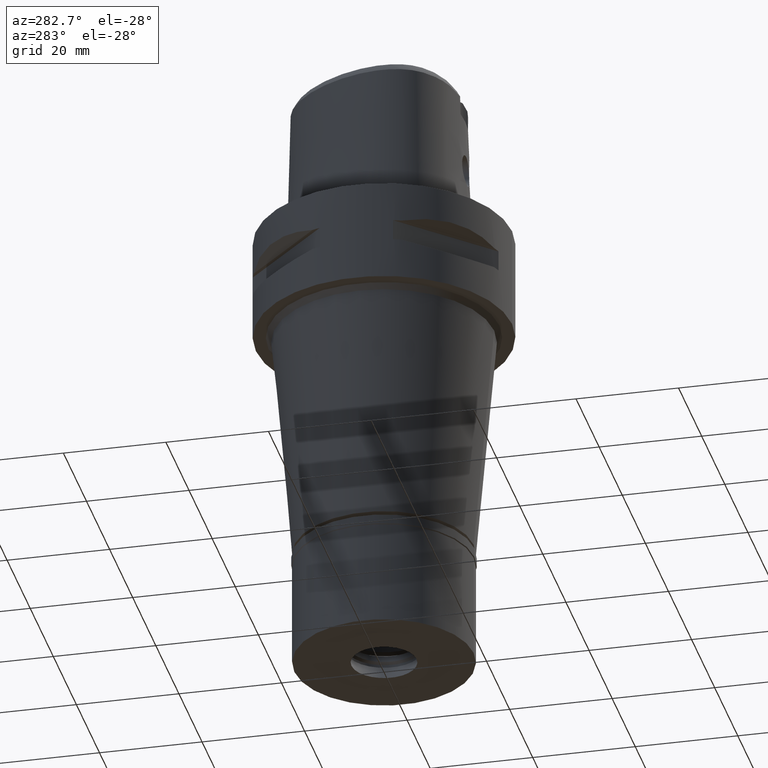
[diagram: clean part render]
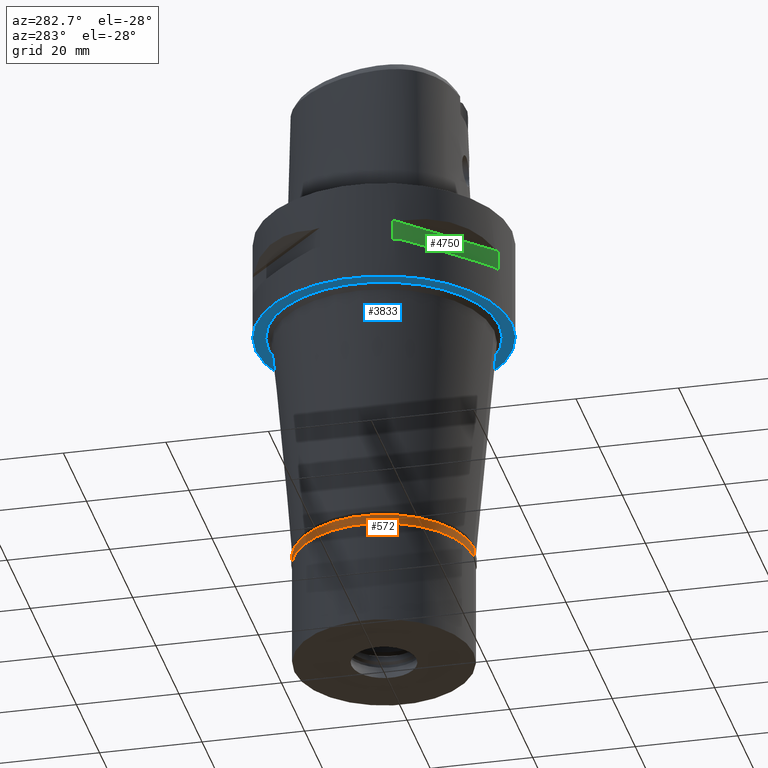
[diagram: same view with three faces highlighted in distinct colors, each labeled with its STEP entity id]
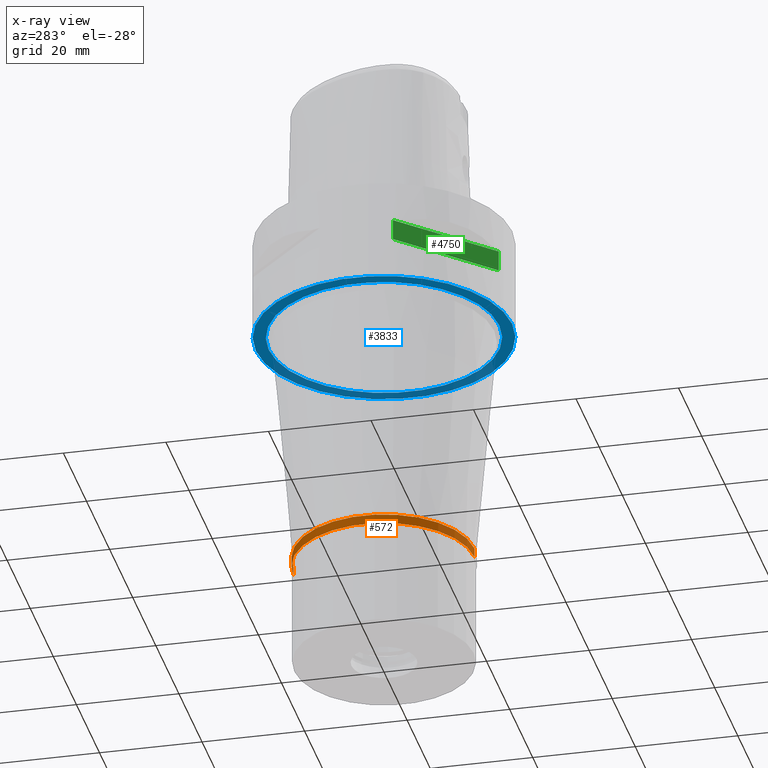
[diagram: x-ray of the same camera — body ghosted, the three highlighted faces saturated]
A machine part, auxiliary view with three faces highlighted in distinct colors.
The next image is the same camera in x-ray (body ghosted, the three faces saturated) — at least one of them is partly hidden behind the body in this view.
Their STEP definitions:

[orange] entity #572 — the highlighted cylindrical surface (partial cylindrical patch) has radius 17.65 mm, axis along (0, 0, -1).
#355 = CARTESIAN_POINT ( 'NONE',  ( 0.0000000000000000000, -17.64999999999999858, 0.0000000000000000000 ) ) ;
#401 = LINE ( 'NONE', #1891, #3010 ) ;
#503 = VERTEX_POINT ( 'NONE', #3673 ) ;
#572 = ADVANCED_FACE ( 'NONE', ( #4260 ), #1643, .T. ) ;
#825 = EDGE_CURVE ( 'NONE', #1522, #4436, #2646, .T. ) ;
#853 = EDGE_CURVE ( 'NONE', #4436, #503, #1742, .T. ) ;
#1069 = CARTESIAN_POINT ( 'NONE',  ( 0.0000000000000000000, 0.0000000000000000000, 0.0000000000000000000 ) ) ;
#1188 = AXIS2_PLACEMENT_3D ( 'NONE', #3577, #2029, #1283 ) ;
#1283 = DIRECTION ( 'NONE',  ( 0.0000000000000000000, -1.000000000000000000, 0.0000000000000000000 ) ) ;
#1417 = ORIENTED_EDGE ( 'NONE', *, *, #1661, .T. ) ;
#1447 = DIRECTION ( 'NONE',  ( 0.0000000000000000000, 0.0000000000000000000, -1.000000000000000000 ) ) ;
#1491 = DIRECTION ( 'NONE',  ( 0.0000000000000000000, 0.0000000000000000000, -1.000000000000000000 ) ) ;
#1522 = VERTEX_POINT ( 'NONE', #3432 ) ;
#1583 = EDGE_CURVE ( 'NONE', #4124, #503, #401, .T. ) ;
#1643 = CYLINDRICAL_SURFACE ( 'NONE', #2923, 17.64999999999999858 ) ;
#1661 = EDGE_CURVE ( 'NONE', #4124, #1522, #2297, .T. ) ;
#1742 = CIRCLE ( 'NONE', #2529, 17.64999999999999858 ) ;
#1891 = CARTESIAN_POINT ( 'NONE',  ( 0.0000000000000000000, -17.64999999999999858, 0.0000000000000000000 ) ) ;
#2029 = DIRECTION ( 'NONE',  ( 0.0000000000000000000, 0.0000000000000000000, -1.000000000000000000 ) ) ;
#2148 = EDGE_LOOP ( 'NONE', ( #3060, #3880, #1417, #3943 ) ) ;
#2210 = VECTOR ( 'NONE', #4154, 1000.000000000000000 ) ;
#2297 = CIRCLE ( 'NONE', #1188, 17.64999999999999858 ) ;
#2529 = AXIS2_PLACEMENT_3D ( 'NONE', #4114, #3003, #2624 ) ;
#2545 = CARTESIAN_POINT ( 'NONE',  ( 0.0000000000000000000, 17.64999999999999858, -1.850000000000000089 ) ) ;
#2574 = DIRECTION ( 'NONE',  ( 0.0000000000000000000, -1.000000000000000000, 0.0000000000000000000 ) ) ;
#2624 = DIRECTION ( 'NONE',  ( 0.0000000000000000000, 1.000000000000000000, 0.0000000000000000000 ) ) ;
#2646 = LINE ( 'NONE', #4572, #2210 ) ;
#2923 = AXIS2_PLACEMENT_3D ( 'NONE', #1069, #1447, #2574 ) ;
#3003 = DIRECTION ( 'NONE',  ( 0.0000000000000000000, 0.0000000000000000000, 1.000000000000000000 ) ) ;
#3010 = VECTOR ( 'NONE', #1491, 1000.000000000000000 ) ;
#3060 = ORIENTED_EDGE ( 'NONE', *, *, #853, .T. ) ;
#3432 = CARTESIAN_POINT ( 'NONE',  ( 0.0000000000000000000, 17.64999999999999858, 0.0000000000000000000 ) ) ;
#3577 = CARTESIAN_POINT ( 'NONE',  ( 0.0000000000000000000, 0.0000000000000000000, 0.0000000000000000000 ) ) ;
#3673 = CARTESIAN_POINT ( 'NONE',  ( 0.0000000000000000000, -17.64999999999999858, -1.850000000000000089 ) ) ;
#3880 = ORIENTED_EDGE ( 'NONE', *, *, #1583, .F. ) ;
#3943 = ORIENTED_EDGE ( 'NONE', *, *, #825, .T. ) ;
#4114 = CARTESIAN_POINT ( 'NONE',  ( 0.0000000000000000000, 0.0000000000000000000, -1.850000000000000089 ) ) ;
#4124 = VERTEX_POINT ( 'NONE', #355 ) ;
#4154 = DIRECTION ( 'NONE',  ( 0.0000000000000000000, 0.0000000000000000000, -1.000000000000000000 ) ) ;
#4260 = FACE_OUTER_BOUND ( 'NONE', #2148, .T. ) ;
#4436 = VERTEX_POINT ( 'NONE', #2545 ) ;
#4572 = CARTESIAN_POINT ( 'NONE',  ( 0.0000000000000000000, 17.64999999999999858, 0.0000000000000000000 ) ) ;

[blue] entity #3833 — the highlighted planar face has unit normal (0, 0, -1).
#93 = VERTEX_POINT ( 'NONE', #4630 ) ;
#389 = AXIS2_PLACEMENT_3D ( 'NONE', #2252, #1612, #1115 ) ;
#406 = EDGE_LOOP ( 'NONE', ( #2637, #1288 ) ) ;
#420 = DIRECTION ( 'NONE',  ( 0.0000000000000000000, 0.0000000000000000000, 1.000000000000000000 ) ) ;
#531 = CIRCLE ( 'NONE', #4559, 25.00000000000000000 ) ;
#583 = VERTEX_POINT ( 'NONE', #3286 ) ;
#780 = AXIS2_PLACEMENT_3D ( 'NONE', #3944, #2825, #4332 ) ;
#895 = FACE_OUTER_BOUND ( 'NONE', #4331, .T. ) ;
#920 = PLANE ( 'NONE',  #780 ) ;
#1115 = DIRECTION ( 'NONE',  ( 0.0000000000000000000, -1.000000000000000000, 0.0000000000000000000 ) ) ;
#1173 = AXIS2_PLACEMENT_3D ( 'NONE', #1788, #4251, #4666 ) ;
#1288 = ORIENTED_EDGE ( 'NONE', *, *, #2797, .F. ) ;
#1531 = CARTESIAN_POINT ( 'NONE',  ( 0.0000000000000000000, 1.275653338331999844E-14, -20.00000000000000000 ) ) ;
#1612 = DIRECTION ( 'NONE',  ( 0.0000000000000000000, 0.0000000000000000000, -1.000000000000000000 ) ) ;
#1788 = CARTESIAN_POINT ( 'NONE',  ( 0.0000000000000000000, 0.0000000000000000000, -20.00000000000000000 ) ) ;
#1889 = DIRECTION ( 'NONE',  ( 0.0000000000000000000, 1.000000000000000000, 0.0000000000000000000 ) ) ;
#1977 = DIRECTION ( 'NONE',  ( 0.0000000000000000000, -1.000000000000000000, 0.0000000000000000000 ) ) ;
#2052 = CIRCLE ( 'NONE', #1173, 22.49823192312999964 ) ;
#2252 = CARTESIAN_POINT ( 'NONE',  ( 0.0000000000000000000, 0.0000000000000000000, -20.00000000000000000 ) ) ;
#2411 = FACE_BOUND ( 'NONE', #406, .T. ) ;
#2599 = EDGE_CURVE ( 'NONE', #3091, #93, #531, .T. ) ;
#2637 = ORIENTED_EDGE ( 'NONE', *, *, #2956, .F. ) ;
#2639 = DIRECTION ( 'NONE',  ( 0.0000000000000000000, 0.0000000000000000000, 1.000000000000000000 ) ) ;
#2797 = EDGE_CURVE ( 'NONE', #3742, #583, #4488, .T. ) ;
#2825 = DIRECTION ( 'NONE',  ( 0.0000000000000000000, 0.0000000000000000000, -1.000000000000000000 ) ) ;
#2956 = EDGE_CURVE ( 'NONE', #583, #3742, #2052, .T. ) ;
#3091 = VERTEX_POINT ( 'NONE', #4125 ) ;
#3286 = CARTESIAN_POINT ( 'NONE',  ( 0.0000000000000000000, 22.49823192312999964, -20.00000000000000000 ) ) ;
#3402 = CARTESIAN_POINT ( 'NONE',  ( 0.0000000000000000000, 1.275653338331999844E-14, -20.00000000000000000 ) ) ;
#3409 = CIRCLE ( 'NONE', #3874, 25.00000000000000000 ) ;
#3742 = VERTEX_POINT ( 'NONE', #4306 ) ;
#3833 = ADVANCED_FACE ( 'NONE', ( #895, #2411 ), #920, .T. ) ;
#3874 = AXIS2_PLACEMENT_3D ( 'NONE', #1531, #2639, #1977 ) ;
#3944 = CARTESIAN_POINT ( 'NONE',  ( 0.0000000000000000000, 0.0000000000000000000, -20.00000000000000000 ) ) ;
#3970 = ORIENTED_EDGE ( 'NONE', *, *, #2599, .F. ) ;
#4125 = CARTESIAN_POINT ( 'NONE',  ( 0.0000000000000000000, 25.00000000000000000, -20.00000000000000000 ) ) ;
#4251 = DIRECTION ( 'NONE',  ( 0.0000000000000000000, 0.0000000000000000000, -1.000000000000000000 ) ) ;
#4306 = CARTESIAN_POINT ( 'NONE',  ( 0.0000000000000000000, -22.49823192312999964, -20.00000000000000000 ) ) ;
#4331 = EDGE_LOOP ( 'NONE', ( #3970, #4463 ) ) ;
#4332 = DIRECTION ( 'NONE',  ( 0.0000000000000000000, -1.000000000000000000, 0.0000000000000000000 ) ) ;
#4445 = EDGE_CURVE ( 'NONE', #93, #3091, #3409, .T. ) ;
#4463 = ORIENTED_EDGE ( 'NONE', *, *, #4445, .F. ) ;
#4488 = CIRCLE ( 'NONE', #389, 22.49823192312999964 ) ;
#4559 = AXIS2_PLACEMENT_3D ( 'NONE', #3402, #420, #1889 ) ;
#4630 = CARTESIAN_POINT ( 'NONE',  ( 0.0000000000000000000, -25.00000000000000000, -20.00000000000000000 ) ) ;
#4666 = DIRECTION ( 'NONE',  ( 0.0000000000000000000, 1.000000000000000000, 0.0000000000000000000 ) ) ;

[green] entity #4750 — the highlighted planar face has unit normal (0.7071, 0.7071, 0).
#2 = AXIS2_PLACEMENT_3D ( 'NONE', #4661, #1297, #1323 ) ;
#149 = LINE ( 'NONE', #3886, #4107 ) ;
#264 = DIRECTION ( 'NONE',  ( 0.0000000000000000000, 0.0000000000000000000, -1.000000000000000000 ) ) ;
#488 = DIRECTION ( 'NONE',  ( 0.0000000000000000000, 0.0000000000000000000, 1.000000000000000000 ) ) ;
#581 = EDGE_CURVE ( 'NONE', #2984, #1274, #1392, .T. ) ;
#640 = CARTESIAN_POINT ( 'NONE',  ( -23.95277699797999915, -7.159921374235000080, -7.950000000000000178 ) ) ;
#642 = CARTESIAN_POINT ( 'NONE',  ( -23.95277699797999915, -7.159921374230999724, -12.05000000000000071 ) ) ;
#721 = CARTESIAN_POINT ( 'NONE',  ( -23.95277699797999915, -7.159921374230999724, -7.950000000000000178 ) ) ;
#907 = CARTESIAN_POINT ( 'NONE',  ( -23.95277699797999915, -7.159921374230999724, -12.05000000000000071 ) ) ;
#988 = EDGE_CURVE ( 'NONE', #1274, #4363, #1015, .T. ) ;
#1011 = CARTESIAN_POINT ( 'NONE',  ( -7.159921374230999724, -23.95277699797999915, -7.950000000000000178 ) ) ;
#1015 = LINE ( 'NONE', #642, #2289 ) ;
#1041 = DIRECTION ( 'NONE',  ( 0.7071067811865474617, -0.7071067811865474617, 0.0000000000000000000 ) ) ;
#1253 = VECTOR ( 'NONE', #264, 1000.000000000000000 ) ;
#1274 = VERTEX_POINT ( 'NONE', #907 ) ;
#1297 = DIRECTION ( 'NONE',  ( 0.7071067811865475727, 0.7071067811865475727, 0.0000000000000000000 ) ) ;
#1323 = DIRECTION ( 'NONE',  ( 0.0000000000000000000, 0.0000000000000000000, -1.000000000000000000 ) ) ;
#1340 = EDGE_CURVE ( 'NONE', #4363, #4384, #149, .T. ) ;
#1392 = LINE ( 'NONE', #4827, #1253 ) ;
#1915 = DIRECTION ( 'NONE',  ( 0.7071067811865474617, -0.7071067811865474617, 0.0000000000000000000 ) ) ;
#1919 = ORIENTED_EDGE ( 'NONE', *, *, #581, .T. ) ;
#2098 = FACE_OUTER_BOUND ( 'NONE', #2968, .T. ) ;
#2258 = ORIENTED_EDGE ( 'NONE', *, *, #1340, .T. ) ;
#2289 = VECTOR ( 'NONE', #1041, 1000.000000000000114 ) ;
#2576 = LINE ( 'NONE', #721, #3078 ) ;
#2968 = EDGE_LOOP ( 'NONE', ( #3977, #1919, #4073, #2258 ) ) ;
#2984 = VERTEX_POINT ( 'NONE', #640 ) ;
#3078 = VECTOR ( 'NONE', #1915, 1000.000000000000114 ) ;
#3299 = CARTESIAN_POINT ( 'NONE',  ( -7.159921374235000080, -23.95277699797999915, -12.05000000000000071 ) ) ;
#3886 = CARTESIAN_POINT ( 'NONE',  ( -7.159921374230999724, -23.95277699797999915, -12.05000000000000071 ) ) ;
#3977 = ORIENTED_EDGE ( 'NONE', *, *, #4059, .F. ) ;
#4059 = EDGE_CURVE ( 'NONE', #2984, #4384, #2576, .T. ) ;
#4073 = ORIENTED_EDGE ( 'NONE', *, *, #988, .T. ) ;
#4107 = VECTOR ( 'NONE', #488, 1000.000000000000000 ) ;
#4344 = PLANE ( 'NONE',  #2 ) ;
#4363 = VERTEX_POINT ( 'NONE', #3299 ) ;
#4384 = VERTEX_POINT ( 'NONE', #1011 ) ;
#4661 = CARTESIAN_POINT ( 'NONE',  ( -4.949747468305999654, -26.16295090389999700, -7.950000000000000178 ) ) ;
#4750 = ADVANCED_FACE ( 'NONE', ( #2098 ), #4344, .F. ) ;
#4827 = CARTESIAN_POINT ( 'NONE',  ( -23.95277699797999915, -7.159921374230999724, -7.950000000000000178 ) ) ;